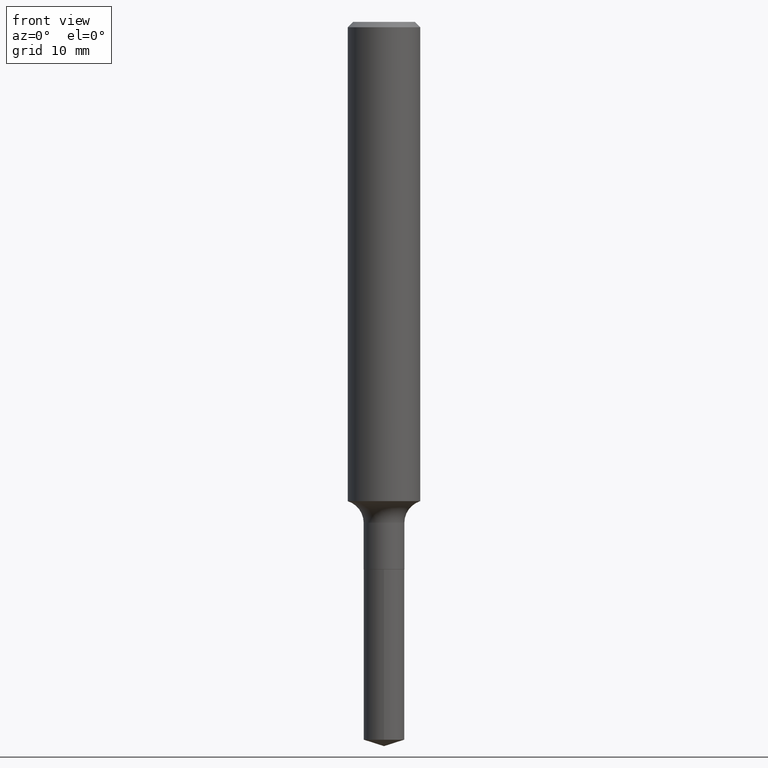
[diagram: clean part render]
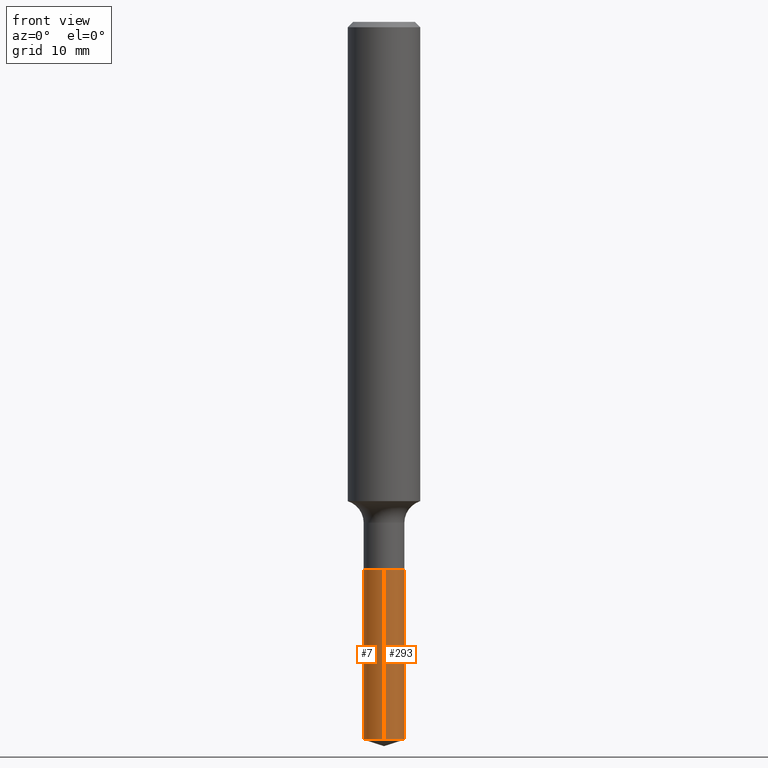
[diagram: same view with one multi-face feature highlighted, each face labeled with its STEP entity id]
A machine part, front view. The highlighted faces form ONE feature: a constant-radius fillet chain: 2 tangent blend faces with common blend radius 1.7844 mm. The faces share edges in the B-rep.
Their STEP definitions:
[1] entity #7 (Cylinder):
#2 = EDGE_CURVE ( 'NONE', #221, #240, #169, .T. ) ;
#7 = ADVANCED_FACE ( 'NONE', ( #174 ), #314, .T. ) ;
#38 = CARTESIAN_POINT ( 'NONE',  ( -4.905531281073995099E-16, -0.07025000000000863887, -2.477850260081251754 ) ) ;
#42 = AXIS2_PLACEMENT_3D ( 'NONE', #209, #480, #130 ) ;
#47 = LINE ( 'NONE', #211, #321 ) ;
#48 = CIRCLE ( 'NONE', #111, 0.07025000000000000688 ) ;
#63 = ORIENTED_EDGE ( 'NONE', *, *, #2, .F. ) ;
#73 = ORIENTED_EDGE ( 'NONE', *, *, #198, .F. ) ;
#76 = EDGE_CURVE ( 'NONE', #351, #492, #47, .T. ) ;
#81 = VECTOR ( 'NONE', #280, 39.37007874015748143 ) ;
#110 = ORIENTED_EDGE ( 'NONE', *, *, #76, .T. ) ;
#111 = AXIS2_PLACEMENT_3D ( 'NONE', #182, #331, #256 ) ;
#124 = ORIENTED_EDGE ( 'NONE', *, *, #463, .T. ) ;
#130 = DIRECTION ( 'NONE',  ( -6.982962677686265922E-15, -1.000000000000000000, 3.888751592404644901E-15 ) ) ;
#132 = CARTESIAN_POINT ( 'NONE',  ( 6.059454052123995684E-29, -8.651441644763633332E-15, -2.477850260081251754 ) ) ;
#138 = CARTESIAN_POINT ( 'NONE',  ( 4.991562718715165778E-16, 0.07024999999999340106, -1.890500000000000513 ) ) ;
#169 = LINE ( 'NONE', #138, #81 ) ;
#174 = FACE_OUTER_BOUND ( 'NONE', #311, .T. ) ;
#182 = CARTESIAN_POINT ( 'NONE',  ( 4.623158778093001238E-29, -6.600645471082967684E-15, -1.890500000000000291 ) ) ;
#198 = EDGE_CURVE ( 'NONE', #240, #492, #48, .T. ) ;
#209 = CARTESIAN_POINT ( 'NONE',  ( 4.623158778093001238E-29, -6.600645471082967684E-15, -1.890500000000000291 ) ) ;
#211 = CARTESIAN_POINT ( 'NONE',  ( -4.905531281074140052E-16, -0.07025000000000659883, -1.890499999999999847 ) ) ;
#221 = VERTEX_POINT ( 'NONE', #417 ) ;
#240 = VERTEX_POINT ( 'NONE', #377 ) ;
#256 = DIRECTION ( 'NONE',  ( -6.982962677686265922E-15, -1.000000000000000000, 3.888751592404644901E-15 ) ) ;
#280 = DIRECTION ( 'NONE',  ( -2.445381183337354867E-29, 3.491606819748351924E-15, 1.000000000000000000 ) ) ;
#311 = EDGE_LOOP ( 'NONE', ( #63, #124, #110, #73 ) ) ;
#314 = CYLINDRICAL_SURFACE ( 'NONE', #42, 0.07025000000000000688 ) ;
#318 = CARTESIAN_POINT ( 'NONE',  ( -4.905531281074140052E-16, -0.07025000000000659883, -1.890499999999999847 ) ) ;
#320 = DIRECTION ( 'NONE',  ( -2.445381183337354867E-29, 3.491606819748351924E-15, 1.000000000000000000 ) ) ;
#321 = VECTOR ( 'NONE', #476, 39.37007874015748143 ) ;
#331 = DIRECTION ( 'NONE',  ( -2.445381183337354867E-29, 3.491606819748351924E-15, 1.000000000000000000 ) ) ;
#351 = VERTEX_POINT ( 'NONE', #38 ) ;
#355 = DIRECTION ( 'NONE',  ( -6.982962677686265922E-15, -1.000000000000000000, 0.000000000000000000 ) ) ;
#377 = CARTESIAN_POINT ( 'NONE',  ( 4.991562718715311718E-16, 0.07024999999999341493, -1.890500000000000513 ) ) ;
#406 = AXIS2_PLACEMENT_3D ( 'NONE', #132, #320, #355 ) ;
#417 = CARTESIAN_POINT ( 'NONE',  ( 4.991562718715308760E-16, 0.07024999999999133327, -2.477850260081251754 ) ) ;
#463 = EDGE_CURVE ( 'NONE', #221, #351, #475, .T. ) ;
#475 = CIRCLE ( 'NONE', #406, 0.07025000000000000688 ) ;
#476 = DIRECTION ( 'NONE',  ( -2.445381183337354867E-29, 3.491606819748351924E-15, 1.000000000000000000 ) ) ;
#480 = DIRECTION ( 'NONE',  ( -2.445381183337354867E-29, 3.491606819748351924E-15, 1.000000000000000000 ) ) ;
#492 = VERTEX_POINT ( 'NONE', #318 ) ;
[2] entity #293 (Cylinder):
#2 = EDGE_CURVE ( 'NONE', #221, #240, #169, .T. ) ;
#38 = CARTESIAN_POINT ( 'NONE',  ( -4.905531281073995099E-16, -0.07025000000000863887, -2.477850260081251754 ) ) ;
#40 = FACE_OUTER_BOUND ( 'NONE', #75, .T. ) ;
#47 = LINE ( 'NONE', #211, #321 ) ;
#53 = CIRCLE ( 'NONE', #378, 0.07025000000000000688 ) ;
#75 = EDGE_LOOP ( 'NONE', ( #155, #167, #231, #397 ) ) ;
#76 = EDGE_CURVE ( 'NONE', #351, #492, #47, .T. ) ;
#81 = VECTOR ( 'NONE', #280, 39.37007874015748143 ) ;
#138 = CARTESIAN_POINT ( 'NONE',  ( 4.991562718715165778E-16, 0.07024999999999340106, -1.890500000000000513 ) ) ;
#155 = ORIENTED_EDGE ( 'NONE', *, *, #267, .T. ) ;
#167 = ORIENTED_EDGE ( 'NONE', *, *, #2, .T. ) ;
#169 = LINE ( 'NONE', #138, #81 ) ;
#176 = AXIS2_PLACEMENT_3D ( 'NONE', #301, #196, #232 ) ;
#177 = CIRCLE ( 'NONE', #251, 0.07025000000000000688 ) ;
#187 = CARTESIAN_POINT ( 'NONE',  ( 6.059454052123995684E-29, -8.651441644763633332E-15, -2.477850260081251754 ) ) ;
#196 = DIRECTION ( 'NONE',  ( -2.445381183337354867E-29, 3.491606819748351924E-15, 1.000000000000000000 ) ) ;
#200 = CYLINDRICAL_SURFACE ( 'NONE', #176, 0.07025000000000000688 ) ;
#211 = CARTESIAN_POINT ( 'NONE',  ( -4.905531281074140052E-16, -0.07025000000000659883, -1.890499999999999847 ) ) ;
#221 = VERTEX_POINT ( 'NONE', #417 ) ;
#231 = ORIENTED_EDGE ( 'NONE', *, *, #247, .F. ) ;
#232 = DIRECTION ( 'NONE',  ( -6.982962677686265922E-15, -1.000000000000000000, 3.888751592404644901E-15 ) ) ;
#240 = VERTEX_POINT ( 'NONE', #377 ) ;
#247 = EDGE_CURVE ( 'NONE', #492, #240, #53, .T. ) ;
#251 = AXIS2_PLACEMENT_3D ( 'NONE', #187, #297, #457 ) ;
#267 = EDGE_CURVE ( 'NONE', #351, #221, #177, .T. ) ;
#280 = DIRECTION ( 'NONE',  ( -2.445381183337354867E-29, 3.491606819748351924E-15, 1.000000000000000000 ) ) ;
#293 = ADVANCED_FACE ( 'NONE', ( #40 ), #200, .T. ) ;
#297 = DIRECTION ( 'NONE',  ( -2.445381183337354867E-29, 3.491606819748351924E-15, 1.000000000000000000 ) ) ;
#301 = CARTESIAN_POINT ( 'NONE',  ( 4.623158778093001238E-29, -6.600645471082967684E-15, -1.890500000000000291 ) ) ;
#318 = CARTESIAN_POINT ( 'NONE',  ( -4.905531281074140052E-16, -0.07025000000000659883, -1.890499999999999847 ) ) ;
#321 = VECTOR ( 'NONE', #476, 39.37007874015748143 ) ;
#351 = VERTEX_POINT ( 'NONE', #38 ) ;
#377 = CARTESIAN_POINT ( 'NONE',  ( 4.991562718715311718E-16, 0.07024999999999341493, -1.890500000000000513 ) ) ;
#378 = AXIS2_PLACEMENT_3D ( 'NONE', #413, #456, #448 ) ;
#397 = ORIENTED_EDGE ( 'NONE', *, *, #76, .F. ) ;
#413 = CARTESIAN_POINT ( 'NONE',  ( 4.623158778093001238E-29, -6.600645471082967684E-15, -1.890500000000000291 ) ) ;
#417 = CARTESIAN_POINT ( 'NONE',  ( 4.991562718715308760E-16, 0.07024999999999133327, -2.477850260081251754 ) ) ;
#448 = DIRECTION ( 'NONE',  ( -6.982962677686265922E-15, -1.000000000000000000, 3.888751592404644901E-15 ) ) ;
#456 = DIRECTION ( 'NONE',  ( -2.445381183337354867E-29, 3.491606819748351924E-15, 1.000000000000000000 ) ) ;
#457 = DIRECTION ( 'NONE',  ( -6.982962677686265922E-15, -1.000000000000000000, 0.000000000000000000 ) ) ;
#476 = DIRECTION ( 'NONE',  ( -2.445381183337354867E-29, 3.491606819748351924E-15, 1.000000000000000000 ) ) ;
#492 = VERTEX_POINT ( 'NONE', #318 ) ;